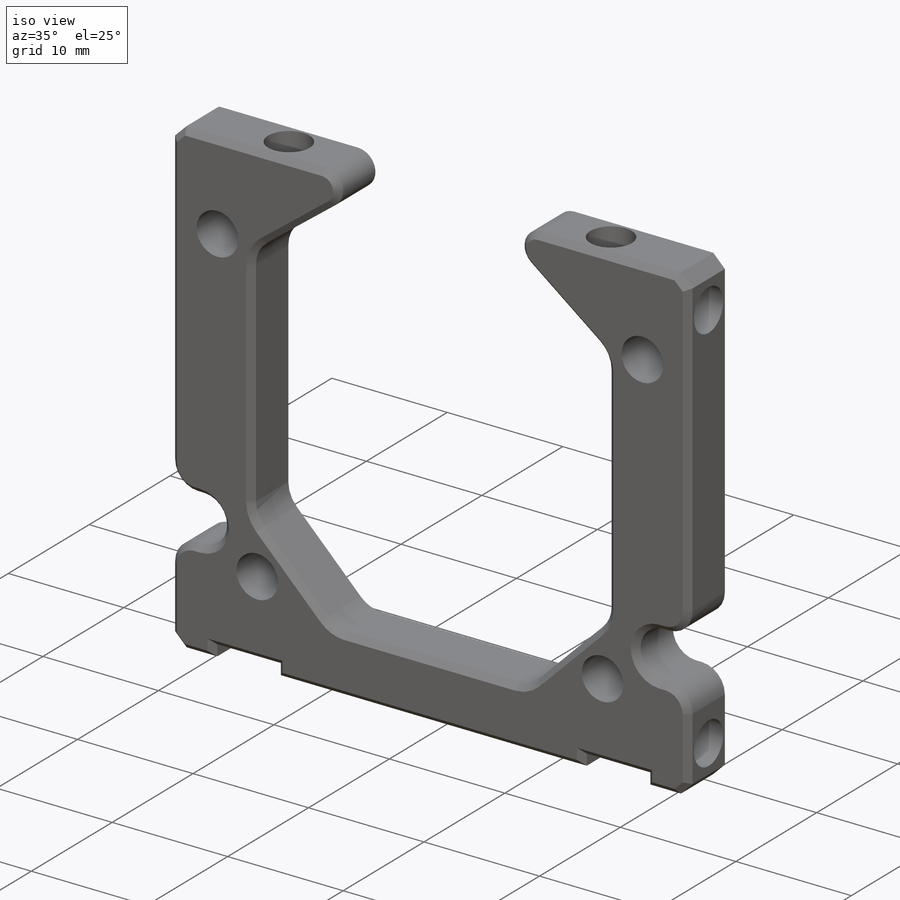
[diagram: iso view]
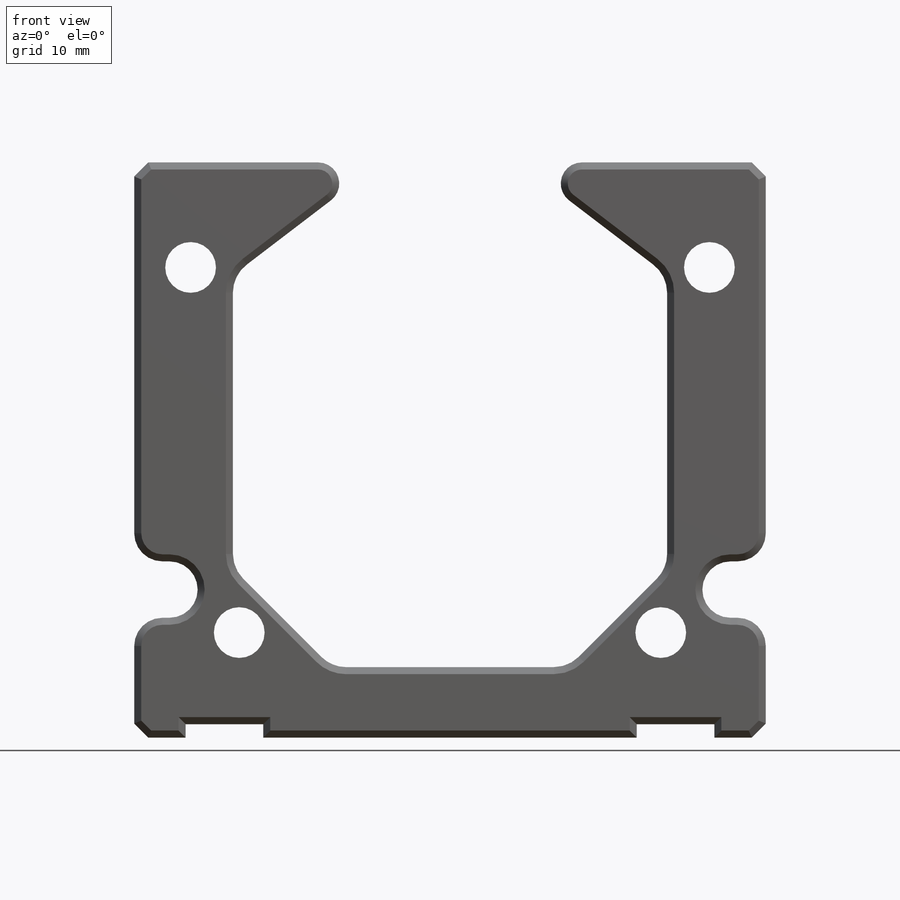
[diagram: front view]
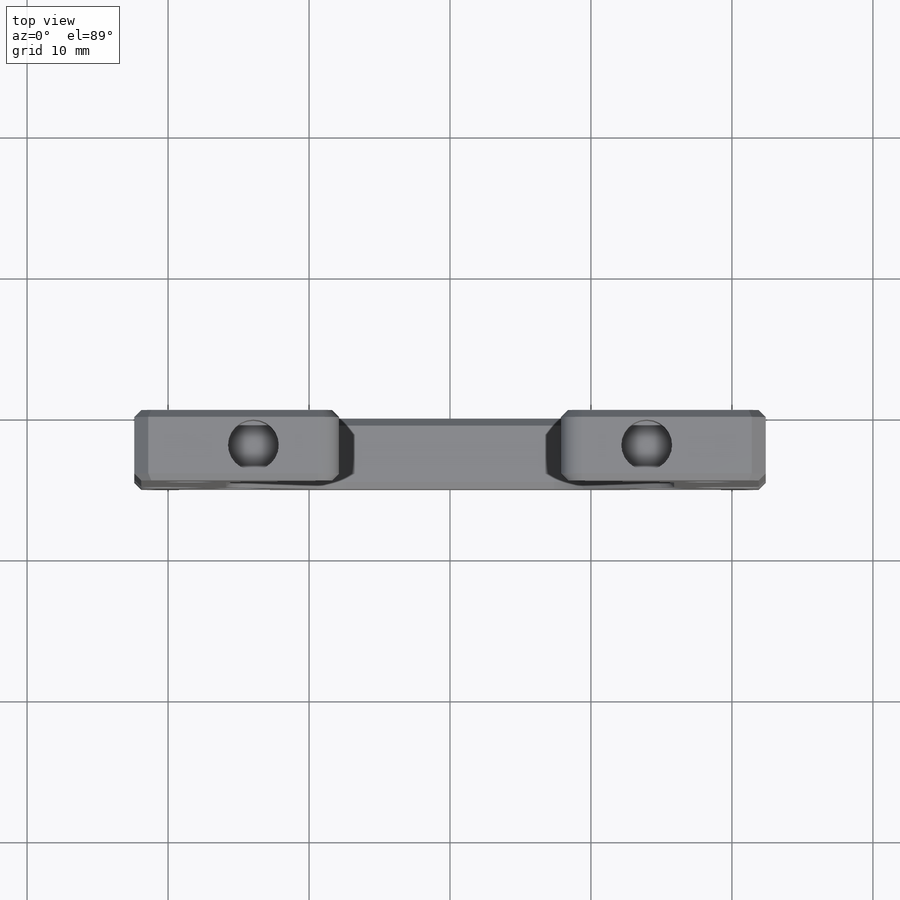
[diagram: top view]
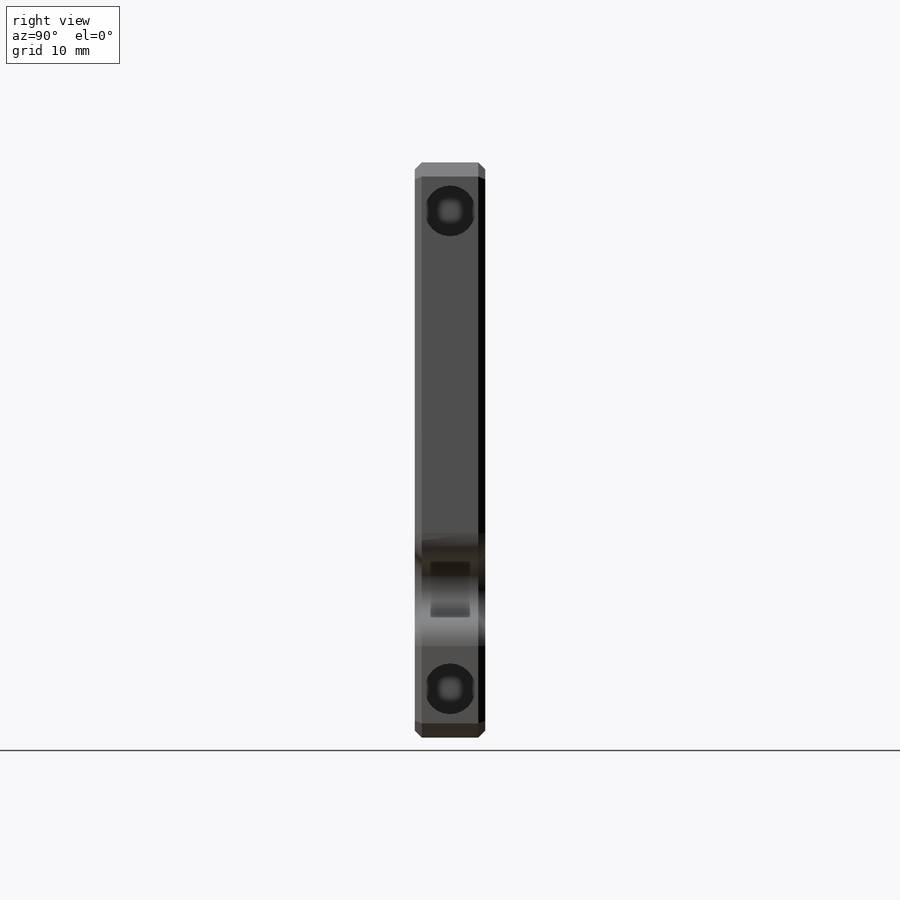
[diagram: right view]
SOLIDWORKS PART (.sldprt)
format: sldprt  version: not decoded by parser v0  size: 996,864 bytes
history: native  units: mm
features: sketch x9, cut_extrude x7, chamfer x3, fillet x3, extrude x2, mirror x2, material x1 (+13 scaffold rows collapsed)
feature tree (40):
  scaffold x13  (default folders/planes/origin — collapsed)
  material  "Material <not specified>"
  sketch  "Sketch2"  dims[D1=44.8mm D2=40.8mm D3=5.0mm D4=7.0mm]
  extrude  "Boss-Extrude1"  Depth=5mm
  chamfer  "Chamfer1"  Distance=1mm Angle=45deg
  chamfer  "Chamfer2"  Distance=7mm Angle=45deg
  sketch  "Sketch3"  dims[D1=3.6mm D2=7.45mm D3=7.45mm]
  cut_extrude  "Cut-Extrude1"  [1 undecoded]
  sketch  "Sketch4"  dims[c1.D1=3.6mm c1.D2=3.2mm c1.D3=3.2mm c2.D2=2.5mm c2.D3=8.45mm]
  cut_extrude  "Cut-Extrude2"  Depth=5mm
  sketch  "Sketch5"  dims[c1.D2=3.6mm c1.D3=3.2mm c1.D1=2.5mm c2.D3=3.45mm]
  cut_extrude  "Cut-Extrude3"  Depth=5mm
  mirror  "Mirror1"
  mirror  "Mirror2"
  sketch  "Sketch8"
  extrude  "Boss-Extrude2"  [1 undecoded]
  sketch  "Sketch9"  dims[c1.D1=3.6mm c1.D2=3.6mm c1.D3=3.6mm c1.D4=3.6mm c1.D6=3.6mm c2.D3=7.45mm c2.D4=7.45mm c2.D5=4.0mm c2.D6=4.0mm]
  cut_extrude  "Cut-Extrude6"  [1 undecoded]
  sketch  "Sketch6"  dims[c1.D1=4.0mm c1.D2=4.0mm c1.D4=4.0mm c1.D3=2.5mm c2.D4=2.5mm c2.D5=10.5mm c2.D6=2.5mm]
  cut_extrude  "Cut-Extrude4"  [1 undecoded]
  fillet  "Fillet2"  Radius=2mm
  sketch  "Sketch7"  dims[c1.D2=26.0mm c1.D3=3.6mm c1.D4=3.6mm c1.D1=7.8mm c2.D3=2.9mm c2.D4=2.9mm c2.D5=~1.883788mm c3.D3=4.0mm c3.D4=4.0mm c3.D5=4.6mm c3.D6=28.2mm]
  cut_extrude  "Cut-Extrude5"  [1 undecoded]
  sketch  "Sketch10"  dims[D1=0.95mm D2=5.5mm D3=5.5mm D4=37.5mm]
  cut_extrude  "Cut-Extrude7"  [1 undecoded]
  fillet  "Fillet3"  Radius=2.5mm
  fillet  "Fillet4"  Radius=1.5mm
  chamfer  "Chamfer3"  Distance=0.5mm Angle=45deg
decode coverage: 17 of 26 modeling features carry decoded parameters
note: ~ marks probable driven/reference dimensions
note: 6 parameter values undecoded
summary: no parameter record found for 6 features
note: suppression state not decoded; provenance and decode notes live in map.json
